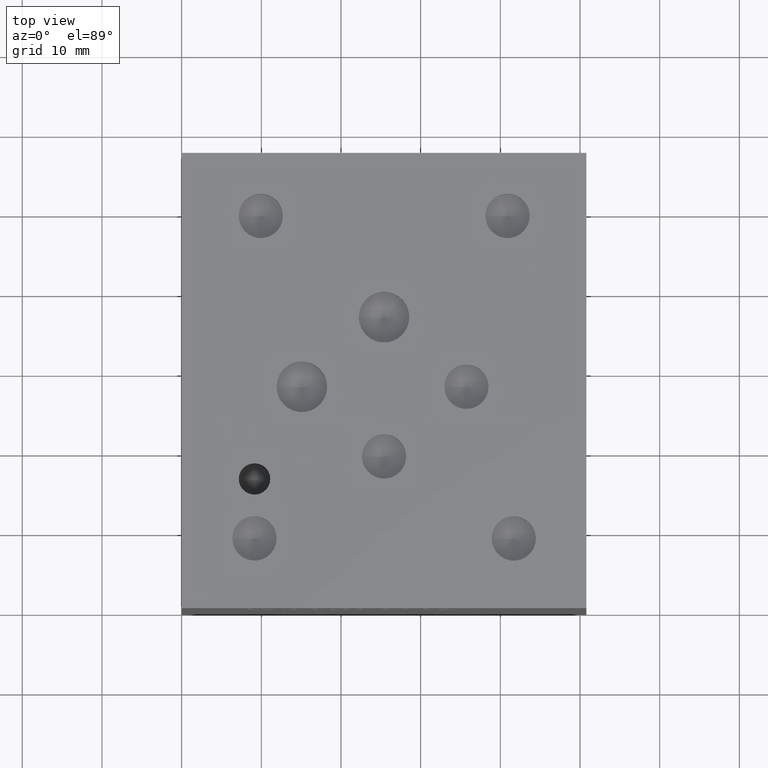
[diagram: clean part render]
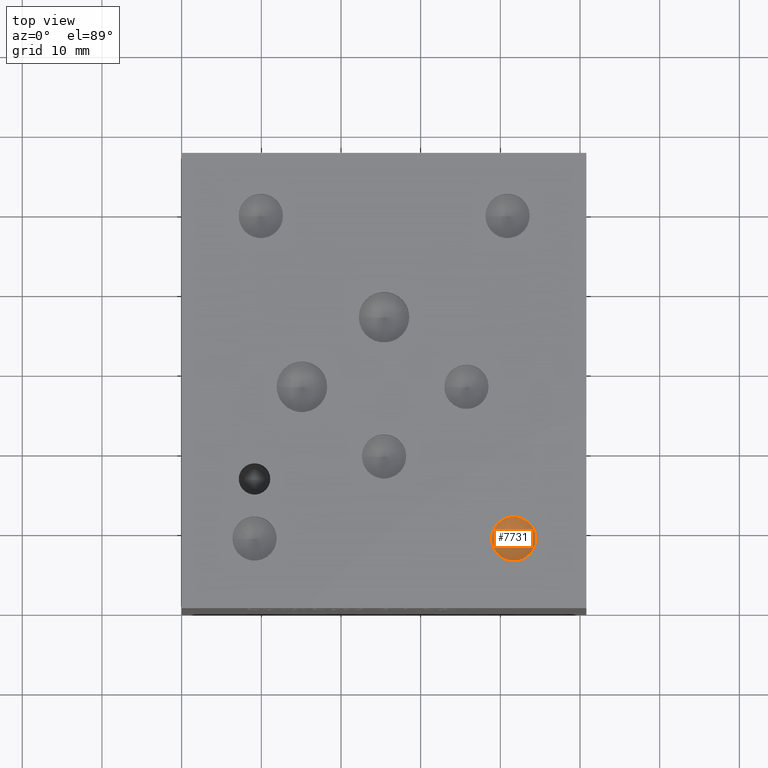
[diagram: same view with one face highlighted and labeled with its STEP entity id]
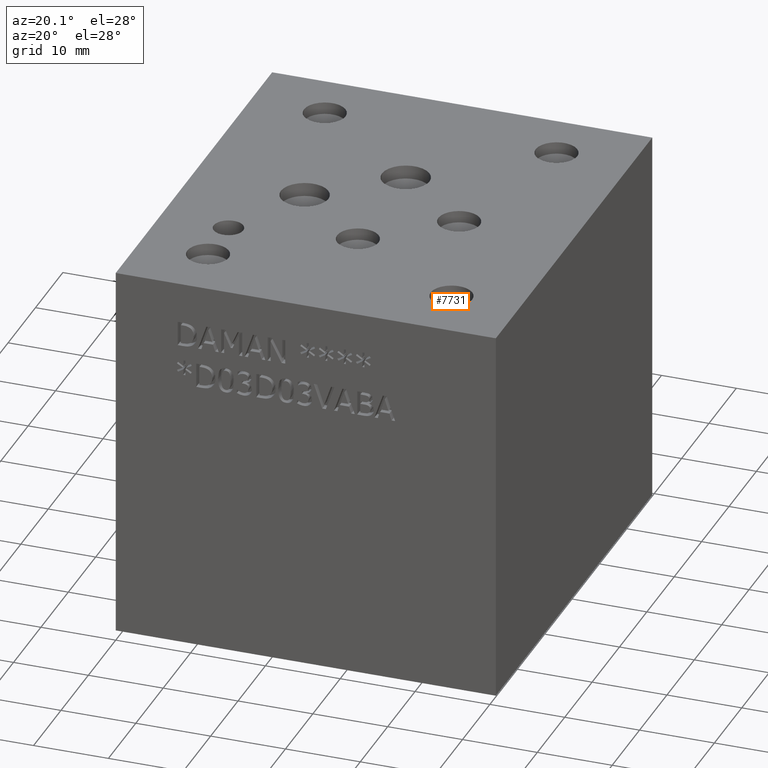
[diagram: same view with one face highlighted and labeled with its STEP entity id]
A machine part, top view. The second image highlights one B-rep face of the part: STEP entity #7731.
A second angle (auxiliary view) of the same face is appended — the face is thin or edge-on in the first view.
In plain terms, the highlighted conical surface has half-angle 60 deg.
Its self-contained STEP definition (entity closure, byte-faithful):
#100=CIRCLE('',#8099,2.7813);
#101=CIRCLE('',#8100,2.7813);
#133=CONICAL_SURFACE('',#8098,1.39065,1.0471975511966);
#864=FACE_OUTER_BOUND('',#1288,.T.);
#1288=EDGE_LOOP('',(#6671,#6672,#6673,#6674));
#2080=LINE('',#13056,#2856);
#2856=VECTOR('',#9572,1.39065);
#3571=VERTEX_POINT('',#13052);
#3572=VERTEX_POINT('',#13053);
#3573=VERTEX_POINT('',#13055);
#4622=EDGE_CURVE('',#3571,#3572,#100,.T.);
#4623=EDGE_CURVE('',#3572,#3573,#2080,.T.);
#4624=EDGE_CURVE('',#3572,#3571,#101,.T.);
#6671=ORIENTED_EDGE('',*,*,#4622,.T.);
#6672=ORIENTED_EDGE('',*,*,#4623,.T.);
#6673=ORIENTED_EDGE('',*,*,#4623,.F.);
#6674=ORIENTED_EDGE('',*,*,#4624,.T.);
#7731=ADVANCED_FACE('',(#864),#133,.F.);
#8098=AXIS2_PLACEMENT_3D('',#13051,#9568,#9569);
#8099=AXIS2_PLACEMENT_3D('',#13054,#9570,#9571);
#8100=AXIS2_PLACEMENT_3D('',#13057,#9573,#9574);
#9568=DIRECTION('center_axis',(0.,0.,1.));
#9569=DIRECTION('ref_axis',(1.,0.,0.));
#9570=DIRECTION('center_axis',(0.,0.,1.));
#9571=DIRECTION('ref_axis',(1.,0.,0.));
#9572=DIRECTION('',(0.866025403784439,1.06057523872491E-16,-0.5));
#9573=DIRECTION('center_axis',(0.,0.,1.));
#9574=DIRECTION('ref_axis',(1.,0.,0.));
#13051=CARTESIAN_POINT('Origin',(41.6814,8.71855,48.3913278481514));
#13052=CARTESIAN_POINT('',(44.4627,8.71855,49.19422));
#13053=CARTESIAN_POINT('',(38.9001,8.71855,49.19422));
#13054=CARTESIAN_POINT('Origin',(41.6814,8.71855,49.19422));
#13055=CARTESIAN_POINT('',(41.6814,8.71855,47.5884356963029));
#13056=CARTESIAN_POINT('',(40.29075,8.71855,48.3913278481514));
#13057=CARTESIAN_POINT('Origin',(41.6814,8.71855,49.19422));